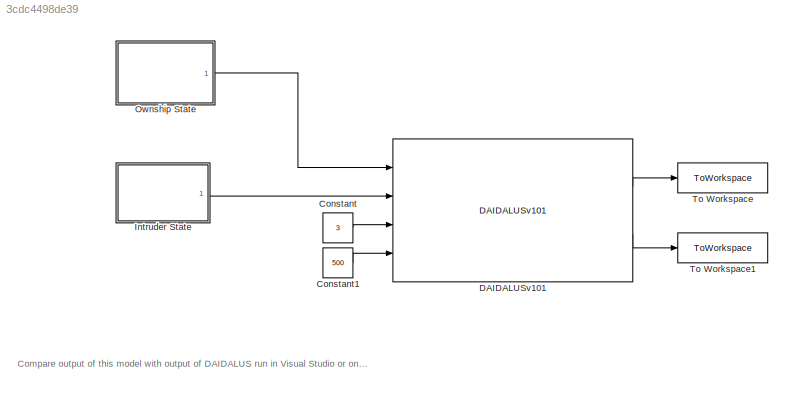
MODEL slx_3cdc4498de39
KIND model
CONFIG AbsTol = auto
CONFIG EnableMultiTasking = on
CONFIG FixedStep = 1
CONFIG MaxStep = auto
CONFIG MinStep = auto
CONFIG RelTol = 1e-3
CONFIG SampleTimeConstraint = Unconstrained
CONFIG Solver = FixedStepDiscrete
CONFIG SolverName = FixedStepDiscrete
CONFIG StartTime = 0.0
CONFIG StopTime = 0
BLOCK [Constant] Constant
  Value = 3
BLOCK [Constant] Constant1
  Value = 500
BLOCK [Reference] DAIDALUSv101  REF=DaidalusV101Block/DAIDALUSv101
  Ports = [4, 2]
  SourceBlock = DaidalusV101Block/DAIDALUSv101
  SourceType = DAIDALUS
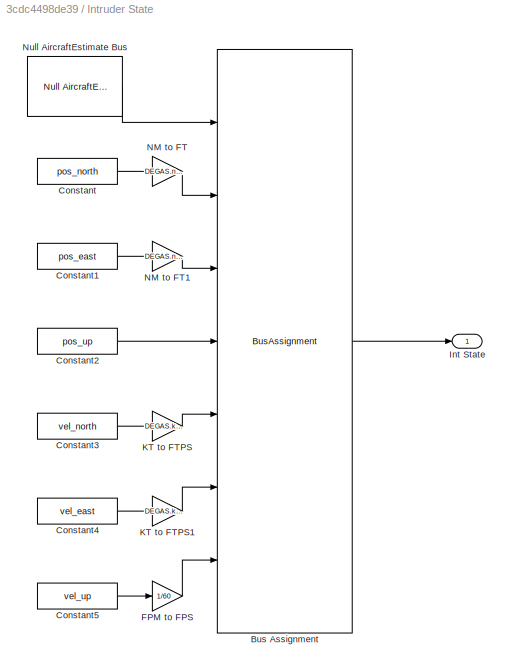
BLOCK [SubSystem] Intruder State
  Ports = [0, 1]
  RequestExecContextInheritance = off
BLOCK [BusAssignment] Intruder State/Bus Assignment
  AssignedSignals = enuStateEstimate.n_ft,enuStateEstimate.e_ft,enuStateEstimate.h_ft,enuStateEstimate.dn_ftps,enuStateEstimate.de_ftps,enuStateEstimate.dh_ftps
  Ports = [7, 1]
BLOCK [Constant] Intruder State/Constant
  Value = pos_north
BLOCK [Constant] Intruder State/Constant1
  Value = pos_east
BLOCK [Constant] Intruder State/Constant2
  Value = pos_up
BLOCK [Constant] Intruder State/Constant3
  Value = vel_north
BLOCK [Constant] Intruder State/Constant4
  Value = vel_east
BLOCK [Constant] Intruder State/Constant5
  Value = vel_up
BLOCK [Gain] Intruder State/FPM to FPS
  Gain = 1/60
  OutDataTypeStr = Inherit: Inherit via internal rule
  ParamDataTypeStr = Inherit: Inherit via internal rule
  SaturateOnIntegerOverflow = off
BLOCK [Outport] Intruder State/Int State
  IconDisplay = Port number
BLOCK [Gain] Intruder State/KT to FTPS
  Gain = DEGAS.kt2ftps
  OutDataTypeStr = Inherit: Inherit via internal rule
  ParamDataTypeStr = Inherit: Inherit via internal rule
  SaturateOnIntegerOverflow = off
BLOCK [Gain] Intruder State/KT to FTPS1
  Gain = DEGAS.kt2ftps
  OutDataTypeStr = Inherit: Inherit via internal rule
  ParamDataTypeStr = Inherit: Inherit via internal rule
  SaturateOnIntegerOverflow = off
BLOCK [Gain] Intruder State/NM to FT
  Gain = DEGAS.nm2ft
  OutDataTypeStr = Inherit: Inherit via internal rule
  ParamDataTypeStr = Inherit: Inherit via internal rule
  SaturateOnIntegerOverflow = off
BLOCK [Gain] Intruder State/NM to FT1
  Gain = DEGAS.nm2ft
  OutDataTypeStr = Inherit: Inherit via internal rule
  ParamDataTypeStr = Inherit: Inherit via internal rule
  SaturateOnIntegerOverflow = off
BLOCK [Reference] Intruder State/Null AircraftEstimate Bus  REF=NullAircraftEstimateBus/Null AircraftEstimate Bus
  Ports = [0, 1]
  SourceBlock = NullAircraftEstimateBus/Null AircraftEstimate Bus
  SourceType = Null AircraftEstimate Bus
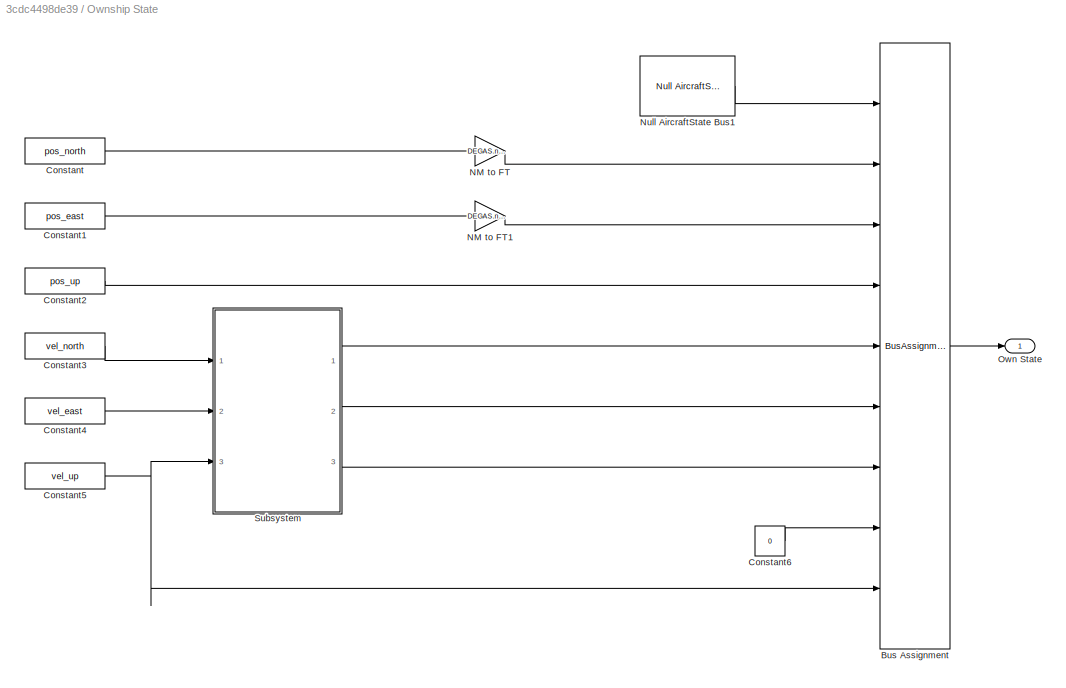
BLOCK [SubSystem] Ownship State
  Ports = [0, 1]
  RequestExecContextInheritance = off
BLOCK [BusAssignment] Ownship State/Bus Assignment
  AssignedSignals = n_ft,e_ft,h_ft,v_ftps,psi_rad,theta_rad,phi_rad,dh_ftps
  Ports = [9, 1]
BLOCK [Constant] Ownship State/Constant
  Value = pos_north
BLOCK [Constant] Ownship State/Constant1
  Value = pos_east
BLOCK [Constant] Ownship State/Constant2
  Value = pos_up
BLOCK [Constant] Ownship State/Constant3
  Value = vel_north
BLOCK [Constant] Ownship State/Constant4
  Value = vel_east
BLOCK [Constant] Ownship State/Constant5
  Value = vel_up
BLOCK [Constant] Ownship State/Constant6
  Value = 0
BLOCK [Gain] Ownship State/NM to FT
  Gain = DEGAS.nm2ft
  OutDataTypeStr = Inherit: Inherit via internal rule
  ParamDataTypeStr = Inherit: Inherit via internal rule
  SaturateOnIntegerOverflow = off
BLOCK [Gain] Ownship State/NM to FT1
  Gain = DEGAS.nm2ft
  OutDataTypeStr = Inherit: Inherit via internal rule
  ParamDataTypeStr = Inherit: Inherit via internal rule
  SaturateOnIntegerOverflow = off
BLOCK [Reference] Ownship State/Null AircraftState Bus1  REF=NullAircraftStateBus/Null AircraftState Bus
  Ports = [0, 1]
  SourceBlock = NullAircraftStateBus/Null AircraftState Bus
  SourceType = Null AircraftState Bus
BLOCK [Outport] Ownship State/Own State
  IconDisplay = Port number
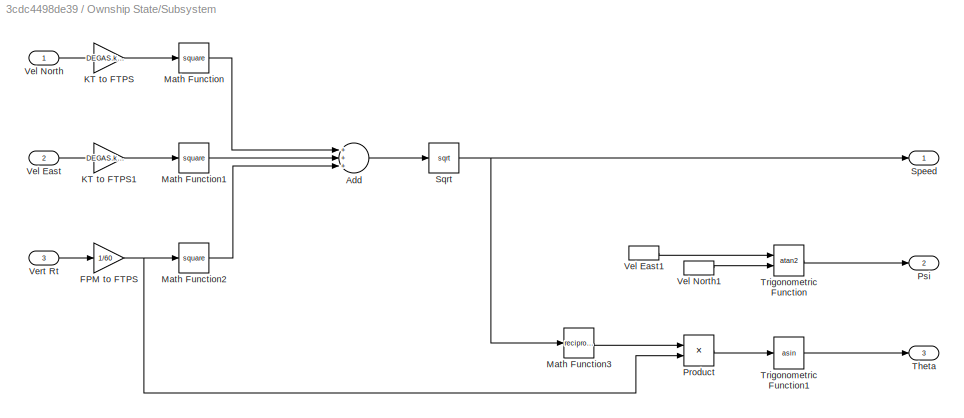
BLOCK [SubSystem] Ownship State/Subsystem
  Ports = [3, 3]
  RequestExecContextInheritance = off
BLOCK [Sum] Ownship State/Subsystem/Add
  InputSameDT = off
  Inputs = +++
  OutDataTypeStr = Inherit: Inherit via internal rule
  Ports = [3, 1]
  SaturateOnIntegerOverflow = off
BLOCK [Gain] Ownship State/Subsystem/FPM to FTPS
  Gain = 1/60
  OutDataTypeStr = Inherit: Inherit via internal rule
  ParamDataTypeStr = Inherit: Inherit via internal rule
  SaturateOnIntegerOverflow = off
BLOCK [Gain] Ownship State/Subsystem/KT to FTPS
  Gain = DEGAS.kt2ftps
  OutDataTypeStr = Inherit: Inherit via internal rule
  ParamDataTypeStr = Inherit: Inherit via internal rule
  SaturateOnIntegerOverflow = off
BLOCK [Gain] Ownship State/Subsystem/KT to FTPS1
  Gain = DEGAS.kt2ftps
  OutDataTypeStr = Inherit: Inherit via internal rule
  ParamDataTypeStr = Inherit: Inherit via internal rule
  SaturateOnIntegerOverflow = off
BLOCK [Math] Ownship State/Subsystem/Math Function
  Operator = square
  Ports = [1, 1]
BLOCK [Math] Ownship State/Subsystem/Math Function1
  Operator = square
  Ports = [1, 1]
BLOCK [Math] Ownship State/Subsystem/Math Function2
  Operator = square
  Ports = [1, 1]
BLOCK [Math] Ownship State/Subsystem/Math Function3
  Operator = reciprocal
  Ports = [1, 1]
BLOCK [Product] Ownship State/Subsystem/Product
  InputSameDT = off
  OutDataTypeStr = Inherit: Inherit via internal rule
  Ports = [2, 1]
  RndMeth = Floor
  SaturateOnIntegerOverflow = off
BLOCK [Outport] Ownship State/Subsystem/Psi
  IconDisplay = Port number
  Port = 2
BLOCK [Outport] Ownship State/Subsystem/Speed
  IconDisplay = Port number
BLOCK [Sqrt] Ownship State/Subsystem/Sqrt
BLOCK [Outport] Ownship State/Subsystem/Theta
  IconDisplay = Port number
  Port = 3
BLOCK [Trigonometry] Ownship State/Subsystem/Trigonometric Function
  Operator = atan2
  Ports = [2, 1]
BLOCK [Trigonometry] Ownship State/Subsystem/Trigonometric Function1
  Operator = asin
  Ports = [1, 1]
BLOCK [Inport] Ownship State/Subsystem/Vel East
  IconDisplay = Port number
  Port = 2
BLOCK [InportShadow] Ownship State/Subsystem/Vel East1
  IconDisplay = Port number
  Port = 2
BLOCK [Inport] Ownship State/Subsystem/Vel North
  IconDisplay = Port number
BLOCK [InportShadow] Ownship State/Subsystem/Vel North1
  IconDisplay = Port number
BLOCK [Inport] Ownship State/Subsystem/Vert Rt
  IconDisplay = Port number
  Port = 3
BLOCK [ToWorkspace] To Workspace
  FixptAsFi = on
  MaxDataPoints = inf
  Ports = [1]
  SampleTime = -1
  Save2DSignal = 3-D array (concatenate along third dimension)
  VariableName = guidanceOut
BLOCK [ToWorkspace] To Workspace1
  FixptAsFi = on
  MaxDataPoints = inf
  Ports = [1]
  SampleTime = -1
  Save2DSignal = 3-D array (concatenate along third dimension)
  VariableName = alertOut
ANNOTATION (root): Compare output of this model with output of DAIDALUS run in Visual Studio or on the command line
LINE Constant1:1 -> DAIDALUSv101:4
LINE Constant:1 -> DAIDALUSv101:3
LINE DAIDALUSv101:1 -> To Workspace:1
LINE DAIDALUSv101:2 -> To Workspace1:1
LINE Intruder State/Bus Assignment:1 -> Intruder State/Int State:1
LINE Intruder State/Constant1:1 -> Intruder State/NM to FT1:1
LINE Intruder State/Constant2:1 -> Intruder State/Bus Assignment:4
LINE Intruder State/Constant3:1 -> Intruder State/KT to FTPS:1
LINE Intruder State/Constant4:1 -> Intruder State/KT to FTPS1:1
LINE Intruder State/Constant5:1 -> Intruder State/FPM to FPS:1
LINE Intruder State/Constant:1 -> Intruder State/NM to FT:1
LINE Intruder State/FPM to FPS:1 -> Intruder State/Bus Assignment:7
LINE Intruder State/KT to FTPS1:1 -> Intruder State/Bus Assignment:6
LINE Intruder State/KT to FTPS:1 -> Intruder State/Bus Assignment:5
LINE Intruder State/NM to FT1:1 -> Intruder State/Bus Assignment:3
LINE Intruder State/NM to FT:1 -> Intruder State/Bus Assignment:2
LINE Intruder State/Null AircraftEstimate Bus:1 -> Intruder State/Bus Assignment:1
LINE Intruder State:1 -> DAIDALUSv101:2
LINE Ownship State/Bus Assignment:1 -> Ownship State/Own State:1
LINE Ownship State/Constant1:1 -> Ownship State/NM to FT1:1
LINE Ownship State/Constant2:1 -> Ownship State/Bus Assignment:4
LINE Ownship State/Constant3:1 -> Ownship State/Subsystem:1
LINE Ownship State/Constant4:1 -> Ownship State/Subsystem:2
NET Ownship State/Constant5:1 -> Ownship State/Bus Assignment:9, Ownship State/Subsystem:3
LINE Ownship State/Constant6:1 -> Ownship State/Bus Assignment:8
LINE Ownship State/Constant:1 -> Ownship State/NM to FT:1
LINE Ownship State/NM to FT1:1 -> Ownship State/Bus Assignment:3
LINE Ownship State/NM to FT:1 -> Ownship State/Bus Assignment:2
LINE Ownship State/Null AircraftState Bus1:1 -> Ownship State/Bus Assignment:1
LINE Ownship State/Subsystem/Add:1 -> Ownship State/Subsystem/Sqrt:1
NET Ownship State/Subsystem/FPM to FTPS:1 -> Ownship State/Subsystem/Math Function2:1, Ownship State/Subsystem/Product:2
LINE Ownship State/Subsystem/KT to FTPS1:1 -> Ownship State/Subsystem/Math Function1:1
LINE Ownship State/Subsystem/KT to FTPS:1 -> Ownship State/Subsystem/Math Function:1
LINE Ownship State/Subsystem/Math Function1:1 -> Ownship State/Subsystem/Add:2
LINE Ownship State/Subsystem/Math Function2:1 -> Ownship State/Subsystem/Add:3
LINE Ownship State/Subsystem/Math Function3:1 -> Ownship State/Subsystem/Product:1
LINE Ownship State/Subsystem/Math Function:1 -> Ownship State/Subsystem/Add:1
LINE Ownship State/Subsystem/Product:1 -> Ownship State/Subsystem/Trigonometric Function1:1
NET Ownship State/Subsystem/Sqrt:1 -> Ownship State/Subsystem/Math Function3:1, Ownship State/Subsystem/Speed:1
LINE Ownship State/Subsystem/Trigonometric Function1:1 -> Ownship State/Subsystem/Theta:1
LINE Ownship State/Subsystem/Trigonometric Function:1 -> Ownship State/Subsystem/Psi:1
LINE Ownship State/Subsystem/Vel East1:1 -> Ownship State/Subsystem/Trigonometric Function:1
LINE Ownship State/Subsystem/Vel East:1 -> Ownship State/Subsystem/KT to FTPS1:1
LINE Ownship State/Subsystem/Vel North1:1 -> Ownship State/Subsystem/Trigonometric Function:2
LINE Ownship State/Subsystem/Vel North:1 -> Ownship State/Subsystem/KT to FTPS:1
LINE Ownship State/Subsystem/Vert Rt:1 -> Ownship State/Subsystem/FPM to FTPS:1
LINE Ownship State/Subsystem:1 -> Ownship State/Bus Assignment:5
LINE Ownship State/Subsystem:2 -> Ownship State/Bus Assignment:6
LINE Ownship State/Subsystem:3 -> Ownship State/Bus Assignment:7
LINE Ownship State:1 -> DAIDALUSv101:1
note: NET lines group one-source signal fan-out (src -> all destinations, sorted); 1:1 wires keep LINE
